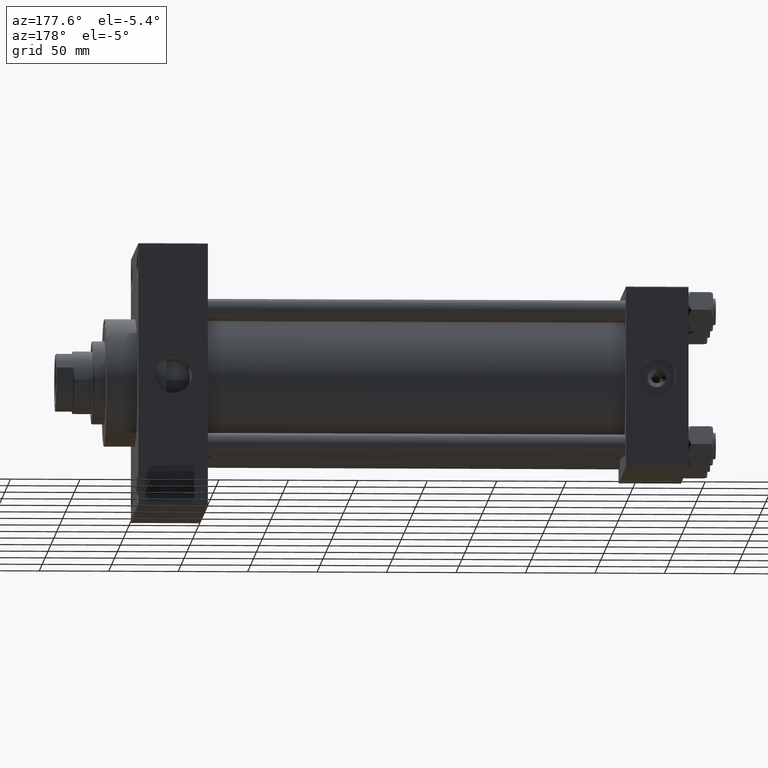
[diagram: clean part render]
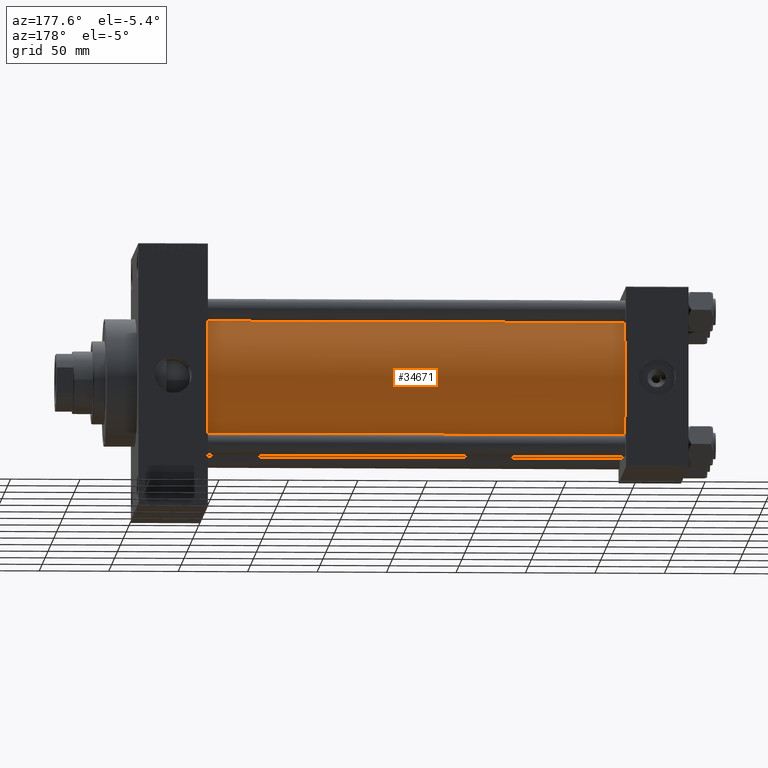
[diagram: same view with one face highlighted and labeled with its STEP entity id]
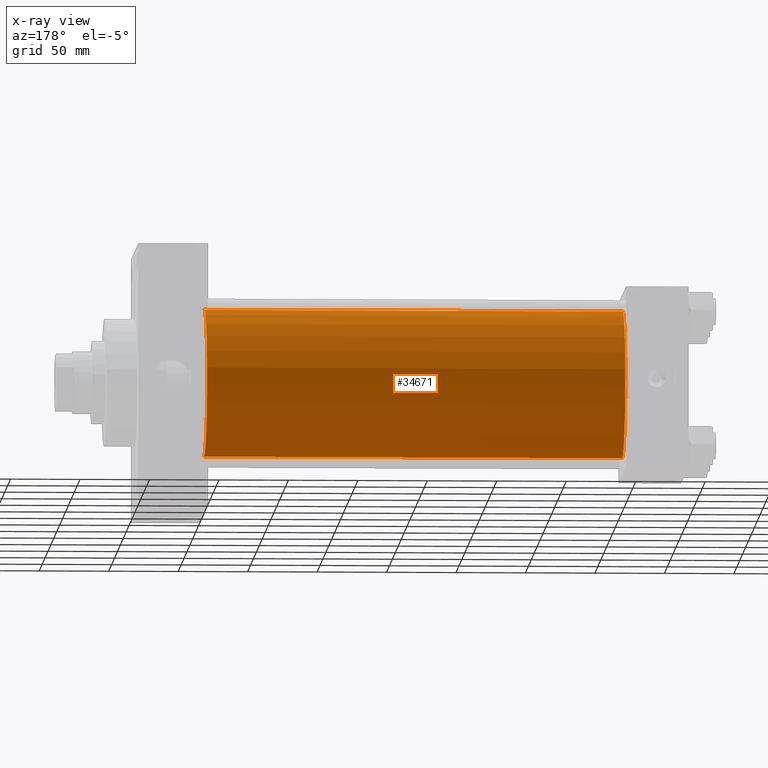
[diagram: x-ray of the same camera — body ghosted, the highlighted face saturated]
A machine part, auxiliary view. The second image highlights one B-rep face of the part: STEP entity #34671.
The next image is the same camera in x-ray: the body ghosted, the highlighted face saturated — about 0% of this face is hidden behind the body in this view.
In plain terms, the highlighted cylindrical surface (partial cylindrical patch) has radius 53 mm, axis along (-1, -0, -0).
Its self-contained STEP definition (entity closure, byte-faithful):
#6 = DIRECTION ( 'NONE',  ( 0.000000000000000000, 0.000000000000000000, 1.000000000000000000 ) ) ;
#344 = VERTEX_POINT ( 'NONE', #8107 ) ;
#3395 = CARTESIAN_POINT ( 'NONE',  ( 346.0000000000000000, -2.602085213965210642E-15, 0.000000000000000000 ) ) ;
#3776 = DIRECTION ( 'NONE',  ( 0.000000000000000000, 0.000000000000000000, 1.000000000000000000 ) ) ;
#3924 = DIRECTION ( 'NONE',  ( -1.000000000000000000, -0.000000000000000000, -0.000000000000000000 ) ) ;
#4173 = ORIENTED_EDGE ( 'NONE', *, *, #9641, .T. ) ;
#7725 = VECTOR ( 'NONE', #32385, 1000.000000000000000 ) ;
#7803 = LINE ( 'NONE', #33481, #9400 ) ;
#8107 = CARTESIAN_POINT ( 'NONE',  ( 346.0000000000000000, -2.602085213965210642E-15, 53.00000000000000711 ) ) ;
#9400 = VECTOR ( 'NONE', #3924, 1000.000000000000000 ) ;
#9641 = EDGE_CURVE ( 'NONE', #12181, #38027, #27437, .T. ) ;
#12181 = VERTEX_POINT ( 'NONE', #28789 ) ;
#13511 = AXIS2_PLACEMENT_3D ( 'NONE', #40600, #22179, #3776 ) ;
#15408 = EDGE_CURVE ( 'NONE', #24258, #344, #29178, .T. ) ;
#18827 = DIRECTION ( 'NONE',  ( 0.000000000000000000, 0.000000000000000000, -1.000000000000000000 ) ) ;
#21027 = ORIENTED_EDGE ( 'NONE', *, *, #15408, .F. ) ;
#22179 = DIRECTION ( 'NONE',  ( 1.000000000000000000, -0.000000000000000000, 0.000000000000000000 ) ) ;
#22707 = CARTESIAN_POINT ( 'NONE',  ( 346.0000000000000000, -2.602085213965210642E-15, 0.000000000000000000 ) ) ;
#24258 = VERTEX_POINT ( 'NONE', #45850 ) ;
#24915 = CARTESIAN_POINT ( 'NONE',  ( 44.99999999999998579, -2.602085213965210642E-15, 53.00000000000000711 ) ) ;
#27306 = ORIENTED_EDGE ( 'NONE', *, *, #40357, .T. ) ;
#27437 = CIRCLE ( 'NONE', #13511, 53.00000000000000711 ) ;
#28789 = CARTESIAN_POINT ( 'NONE',  ( 44.99999999999998579, 3.888542821515762466E-15, -53.00000000000000711 ) ) ;
#29178 = CIRCLE ( 'NONE', #46170, 53.00000000000000711 ) ;
#29554 = FACE_OUTER_BOUND ( 'NONE', #43569, .T. ) ;
#29974 = DIRECTION ( 'NONE',  ( 1.000000000000000000, 0.000000000000000000, 0.000000000000000000 ) ) ;
#30024 = CYLINDRICAL_SURFACE ( 'NONE', #39342, 53.00000000000000711 ) ;
#32385 = DIRECTION ( 'NONE',  ( -1.000000000000000000, -0.000000000000000000, -0.000000000000000000 ) ) ;
#32876 = LINE ( 'NONE', #39660, #7725 ) ;
#33184 = DIRECTION ( 'NONE',  ( -1.000000000000000000, -0.000000000000000000, -0.000000000000000000 ) ) ;
#33481 = CARTESIAN_POINT ( 'NONE',  ( 346.0000000000000000, -2.602085213965210642E-15, 53.00000000000000711 ) ) ;
#33631 = ORIENTED_EDGE ( 'NONE', *, *, #43965, .F. ) ;
#34671 = ADVANCED_FACE ( 'NONE', ( #29554 ), #30024, .T. ) ;
#38027 = VERTEX_POINT ( 'NONE', #24915 ) ;
#39342 = AXIS2_PLACEMENT_3D ( 'NONE', #3395, #33184, #6 ) ;
#39660 = CARTESIAN_POINT ( 'NONE',  ( 346.0000000000000000, 3.888542821515762466E-15, -53.00000000000000711 ) ) ;
#40357 = EDGE_CURVE ( 'NONE', #24258, #12181, #32876, .T. ) ;
#40600 = CARTESIAN_POINT ( 'NONE',  ( 44.99999999999998579, -2.602085213965210642E-15, 0.000000000000000000 ) ) ;
#43569 = EDGE_LOOP ( 'NONE', ( #21027, #27306, #4173, #33631 ) ) ;
#43965 = EDGE_CURVE ( 'NONE', #344, #38027, #7803, .T. ) ;
#45850 = CARTESIAN_POINT ( 'NONE',  ( 346.0000000000000000, 3.888542821515762466E-15, -53.00000000000000711 ) ) ;
#46170 = AXIS2_PLACEMENT_3D ( 'NONE', #22707, #29974, #18827 ) ;